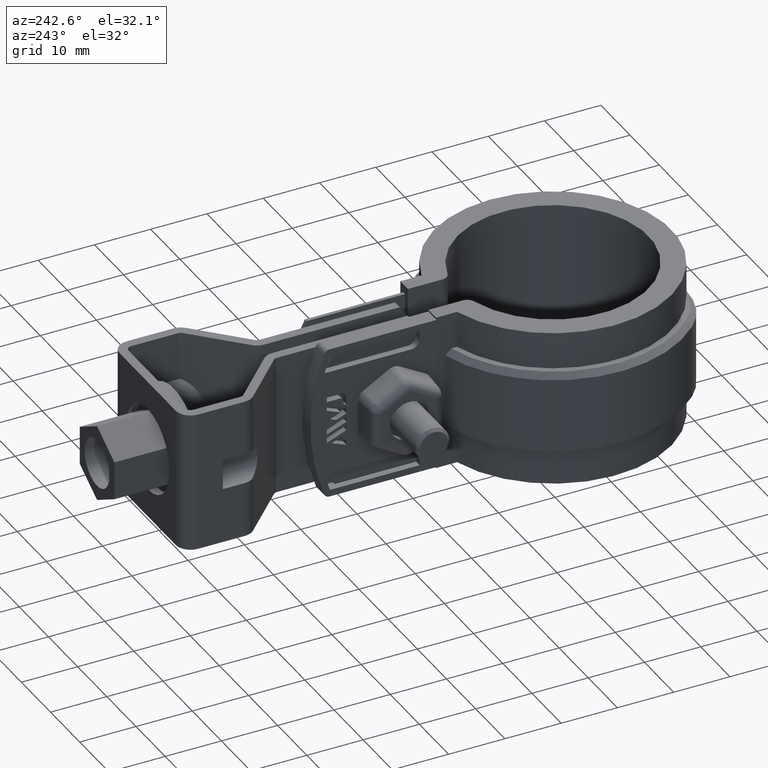
[diagram: clean part render]
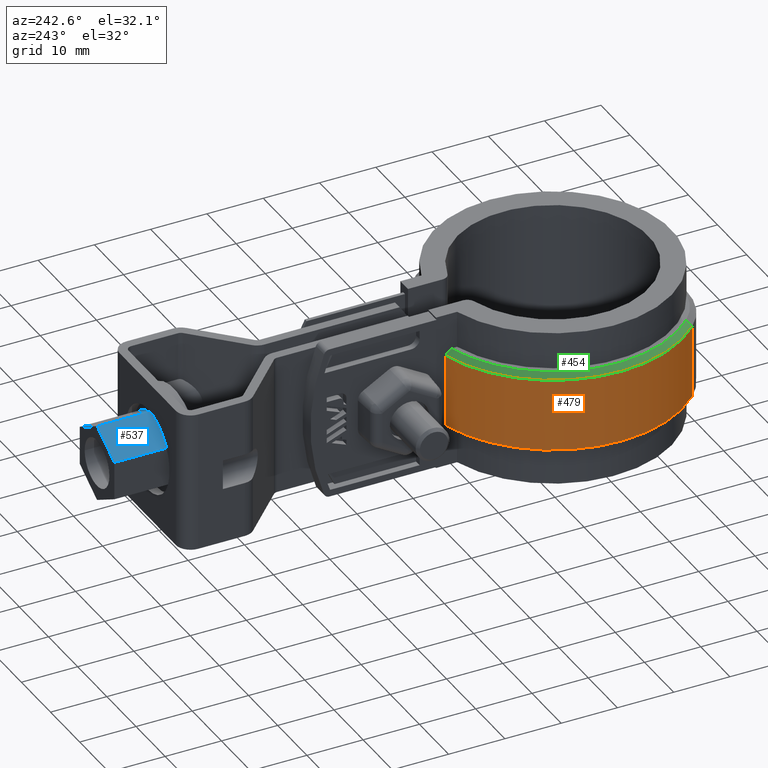
[diagram: same view with three faces highlighted in distinct colors, each labeled with its STEP entity id]
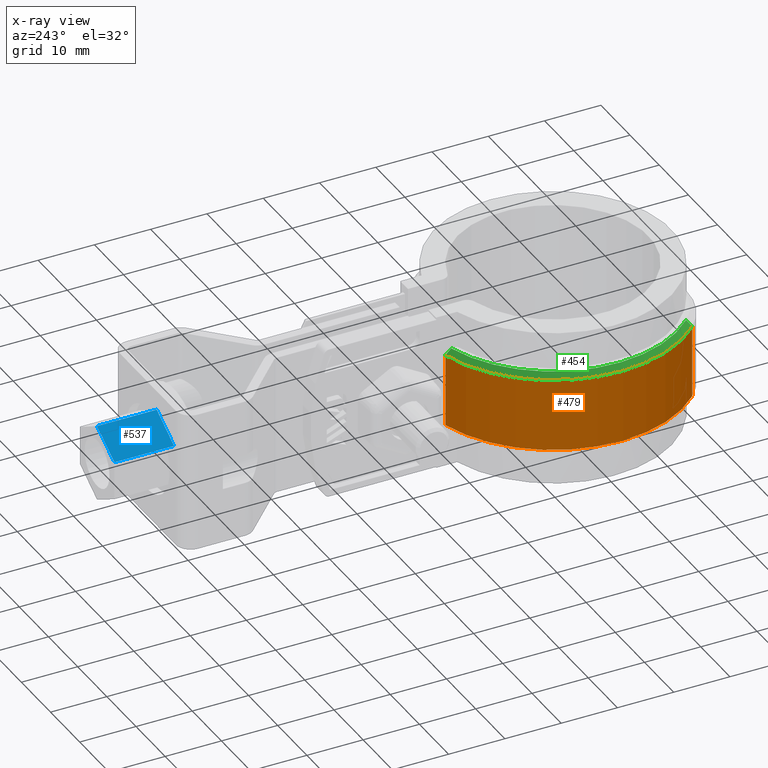
[diagram: x-ray of the same camera — body ghosted, the three highlighted faces saturated]
A machine part, auxiliary view with three faces highlighted in distinct colors.
The next image is the same camera in x-ray (body ghosted, the three faces saturated) — at least one of them is partly hidden behind the body in this view.
Their STEP definitions:

[orange] entity #479 — the highlighted cylindrical surface (partial cylindrical patch) has radius 23.095 mm, axis along (0, 0, -1).
#479 = ADVANCED_FACE( '', ( #935 ), #936, .T. );
#935 = FACE_OUTER_BOUND( '', #2028, .T. );
#936 = CYLINDRICAL_SURFACE( '', #2029, 23.0950000000000 );
#2028 = EDGE_LOOP( '', ( #4570, #4571, #4572, #4573 ) );
#2029 = AXIS2_PLACEMENT_3D( '', #4574, #4575, #4576 );
#4570 = ORIENTED_EDGE( '', *, *, #6594, .F. );
#4571 = ORIENTED_EDGE( '', *, *, #6628, .T. );
#4572 = ORIENTED_EDGE( '', *, *, #6703, .T. );
#4573 = ORIENTED_EDGE( '', *, *, #6678, .T. );
#4574 = CARTESIAN_POINT( '', ( -8.67361737988404E-016, -6.93889390390723E-015, -20.0000000000000 ) );
#4575 = DIRECTION( '', ( 0.000000000000000, 0.000000000000000, -1.00000000000000 ) );
#4576 = DIRECTION( '', ( 0.275275955036381, 0.961365252429485, 0.000000000000000 ) );
#6594 = EDGE_CURVE( '', #7692, #7694, #7695, .T. );
#6628 = EDGE_CURVE( '', #7692, #7748, #7750, .T. );
#6678 = EDGE_CURVE( '', #7786, #7694, #7831, .T. );
#6703 = EDGE_CURVE( '', #7748, #7786, #7860, .T. );
#7692 = VERTEX_POINT( '', #10673 );
#7694 = VERTEX_POINT( '', #10678 );
#7695 = LINE( '', #10679, #10680 );
#7748 = VERTEX_POINT( '', #10804 );
#7750 = CIRCLE( '', #10807, 23.0950000000000 );
#7786 = VERTEX_POINT( '', #10891 );
#7831 = CIRCLE( '', #10956, 23.0950000000000 );
#7860 = LINE( '', #11042, #11043 );
#10673 = CARTESIAN_POINT( '', ( -6.10000000000002, 22.2748518513592, -19.0000000000000 ) );
#10678 = CARTESIAN_POINT( '', ( -6.10000000000002, 22.2748518513592, -6.00000000000000 ) );
#10679 = CARTESIAN_POINT( '', ( -6.10000000000002, 22.2748518513592, -20.0000000000000 ) );
#10680 = VECTOR( '', #12778, 1000.00000000000 );
#10804 = CARTESIAN_POINT( '', ( -16.4128629004502, -16.2479831490258, -19.0000000000000 ) );
#10807 = AXIS2_PLACEMENT_3D( '', #12818, #12819, #12820 );
#10891 = CARTESIAN_POINT( '', ( -16.4128629004502, -16.2479831490258, -6.00000000000000 ) );
#10956 = AXIS2_PLACEMENT_3D( '', #12896, #12897, #12898 );
#11042 = CARTESIAN_POINT( '', ( -16.4128629004502, -16.2479831490258, -20.0000000000000 ) );
#11043 = VECTOR( '', #12933, 1000.00000000000 );
#12778 = DIRECTION( '', ( 0.000000000000000, 0.000000000000000, 1.00000000000000 ) );
#12818 = CARTESIAN_POINT( '', ( -8.67361737988404E-016, -6.93889390390723E-015, -19.0000000000000 ) );
#12819 = DIRECTION( '', ( 0.000000000000000, 0.000000000000000, 1.00000000000000 ) );
#12820 = DIRECTION( '', ( 1.00000000000000, 0.000000000000000, 0.000000000000000 ) );
#12896 = CARTESIAN_POINT( '', ( -8.67361737988404E-016, -6.93889390390723E-015, -6.00000000000000 ) );
#12897 = DIRECTION( '', ( 0.000000000000000, 0.000000000000000, -1.00000000000000 ) );
#12898 = DIRECTION( '', ( -1.00000000000000, 0.000000000000000, 0.000000000000000 ) );
#12933 = DIRECTION( '', ( 0.000000000000000, 0.000000000000000, 1.00000000000000 ) );

[blue] entity #537 — the highlighted planar face has unit normal (0.5, 0, -0.866).
#537 = ADVANCED_FACE( '', ( #1064 ), #1065, .F. );
#1064 = FACE_OUTER_BOUND( '', #2157, .T. );
#1065 = PLANE( '', #2158 );
#2157 = EDGE_LOOP( '', ( #5069, #5070, #5071, #5072 ) );
#2158 = AXIS2_PLACEMENT_3D( '', #5073, #5074, #5075 );
#5069 = ORIENTED_EDGE( '', *, *, #6860, .T. );
#5070 = ORIENTED_EDGE( '', *, *, #6869, .F. );
#5071 = ORIENTED_EDGE( '', *, *, #6867, .F. );
#5072 = ORIENTED_EDGE( '', *, *, #6863, .T. );
#5073 = CARTESIAN_POINT( '', ( -5.94999900793328, 81.0043599829746, -9.06476340370498 ) );
#5074 = DIRECTION( '', ( 0.499999999633774, 1.09779661916409E-008, -0.866025403995879 ) );
#5075 = DIRECTION( '', ( 8.27180611947158E-025, -1.00000000000000, -1.26762634687021E-008 ) );
#6860 = EDGE_CURVE( '', #8120, #8118, #8121, .T. );
#6863 = EDGE_CURVE( '', #8125, #8120, #8126, .T. );
#6867 = EDGE_CURVE( '', #8125, #8131, #8132, .T. );
#6869 = EDGE_CURVE( '', #8131, #8118, #8134, .T. );
#8118 = VERTEX_POINT( '', #11453 );
#8120 = VERTEX_POINT( '', #11456 );
#8121 = LINE( '', #11457, #11458 );
#8125 = VERTEX_POINT( '', #11464 );
#8126 = LINE( '', #11465, #11466 );
#8131 = VERTEX_POINT( '', #11474 );
#8132 = LINE( '', #11475, #11476 );
#8134 = LINE( '', #11479, #11480 );
#11453 = CARTESIAN_POINT( '', ( 9.20563649148581E-007, 70.4043598848266, -5.62952948103228 ) );
#11456 = CARTESIAN_POINT( '', ( -5.94999908088904, 70.4043599829746, -9.06476358019442 ) );
#11457 = CARTESIAN_POINT( '', ( -5.94999908088905, 70.4043599829746, -9.06476358019441 ) );
#11458 = VECTOR( '', #13185, 1000.00000000000 );
#11464 = CARTESIAN_POINT( '', ( -5.94999900793327, 81.0043599829746, -9.06476340370499 ) );
#11465 = CARTESIAN_POINT( '', ( -5.94999900793327, 81.0043599829746, -9.06476340370499 ) );
#11466 = VECTOR( '', #13188, 1000.00000000000 );
#11474 = CARTESIAN_POINT( '', ( 9.93519421149252E-007, 81.0043598848266, -5.62952930454286 ) );
#11475 = CARTESIAN_POINT( '', ( -5.94999900793328, 81.0043599829746, -9.06476340370498 ) );
#11476 = VECTOR( '', #13192, 1000.00000000000 );
#11479 = CARTESIAN_POINT( '', ( 9.93519421149252E-007, 81.0043598848266, -5.62952930454286 ) );
#11480 = VECTOR( '', #13194, 1000.00000000000 );
#13185 = DIRECTION( '', ( 0.866025403995880, -1.42854967473012E-008, 0.499999999633773 ) );
#13188 = DIRECTION( '', ( -6.88262000006329E-009, -1.00000000000000, -1.66499459745878E-008 ) );
#13192 = DIRECTION( '', ( 0.866025403995880, -1.42854967473012E-008, 0.499999999633773 ) );
#13194 = DIRECTION( '', ( -6.88262000006329E-009, -1.00000000000000, -1.66499459745878E-008 ) );

[green] entity #454 — the highlighted conical surface has half-angle 45 deg.
#454 = ADVANCED_FACE( '', ( #884 ), #885, .T. );
#884 = FACE_OUTER_BOUND( '', #1977, .T. );
#885 = CONICAL_SURFACE( '', #1978, 22.0950000000000, 0.785398163397447 );
#1977 = EDGE_LOOP( '', ( #4180, #4181, #4182, #4183 ) );
#1978 = AXIS2_PLACEMENT_3D( '', #4184, #4185, #4186 );
#4180 = ORIENTED_EDGE( '', *, *, #6595, .F. );
#4181 = ORIENTED_EDGE( '', *, *, #6678, .F. );
#4182 = ORIENTED_EDGE( '', *, *, #6651, .F. );
#4183 = ORIENTED_EDGE( '', *, *, #6537, .F. );
#4184 = CARTESIAN_POINT( '', ( -8.67361737988404E-016, -6.93889390390723E-015, -5.00000000000000 ) );
#4185 = DIRECTION( '', ( 0.000000000000000, 0.000000000000000, -1.00000000000000 ) );
#4186 = DIRECTION( '', ( -1.00000000000000, 0.000000000000000, 0.000000000000000 ) );
#6537 = EDGE_CURVE( '', #7591, #7592, #7593, .F. );
#6595 = EDGE_CURVE( '', #7694, #7591, #7696, .F. );
#6651 = EDGE_CURVE( '', #7592, #7786, #7787, .T. );
#6678 = EDGE_CURVE( '', #7786, #7694, #7831, .T. );
#7591 = VERTEX_POINT( '', #10179 );
#7592 = VERTEX_POINT( '', #10180 );
#7593 = CIRCLE( '', #10181, 22.0950000000000 );
#7694 = VERTEX_POINT( '', #10678 );
#7696 = B_SPLINE_CURVE_WITH_KNOTS( '', 3, ( #10681, #10682, #10683, #10684 ), .UNSPECIFIED., .F., .F., ( 4, 4 ), ( 707.130334014855, 707.131788933458 ), .UNSPECIFIED. );
#7786 = VERTEX_POINT( '', #10891 );
#7787 = LINE( '', #10892, #10893 );
#7831 = CIRCLE( '', #10956, 23.0950000000000 );
#10179 = CARTESIAN_POINT( '', ( -6.10000000000002, 21.2362667387655, -5.00000000000000 ) );
#10180 = CARTESIAN_POINT( '', ( -15.7021955308702, -15.5444549763033, -5.00000000000000 ) );
#10181 = AXIS2_PLACEMENT_3D( '', #12720, #12721, #12722 );
#10678 = CARTESIAN_POINT( '', ( -6.10000000000002, 22.2748518513592, -6.00000000000000 ) );
#10681 = CARTESIAN_POINT( '', ( -6.10000000000002, 21.2362667387879, -5.00000000002148 ) );
#10682 = CARTESIAN_POINT( '', ( -6.10000000000002, 21.5827481550320, -5.33301524217520 ) );
#10683 = CARTESIAN_POINT( '', ( -6.10000000000002, 21.9289303497823, -5.66636284044924 ) );
#10684 = CARTESIAN_POINT( '', ( -6.10000000000002, 22.2748518513816, -6.00000000002165 ) );
#10891 = CARTESIAN_POINT( '', ( -16.4128629004502, -16.2479831490258, -6.00000000000000 ) );
#10892 = CARTESIAN_POINT( '', ( -15.7021955308702, -15.5444549763033, -5.00000000000000 ) );
#10893 = VECTOR( '', #12849, 1000.00000000000 );
#10956 = AXIS2_PLACEMENT_3D( '', #12896, #12897, #12898 );
#12720 = CARTESIAN_POINT( '', ( -8.67361737988404E-016, -6.93889390390723E-015, -5.00000000000000 ) );
#12721 = DIRECTION( '', ( 0.000000000000000, 0.000000000000000, -1.00000000000000 ) );
#12722 = DIRECTION( '', ( -1.00000000000000, 0.000000000000000, 0.000000000000000 ) );
#12849 = DIRECTION( '', ( -0.502517716198026, -0.497469541687849, -0.707106781186549 ) );
#12896 = CARTESIAN_POINT( '', ( -8.67361737988404E-016, -6.93889390390723E-015, -6.00000000000000 ) );
#12897 = DIRECTION( '', ( 0.000000000000000, 0.000000000000000, -1.00000000000000 ) );
#12898 = DIRECTION( '', ( -1.00000000000000, 0.000000000000000, 0.000000000000000 ) );